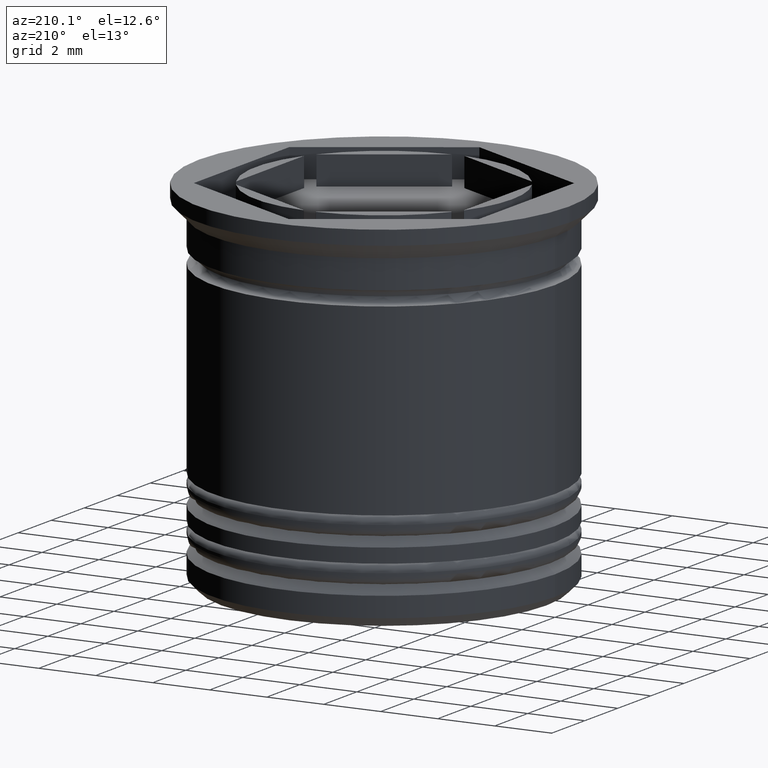
[diagram: clean part render]
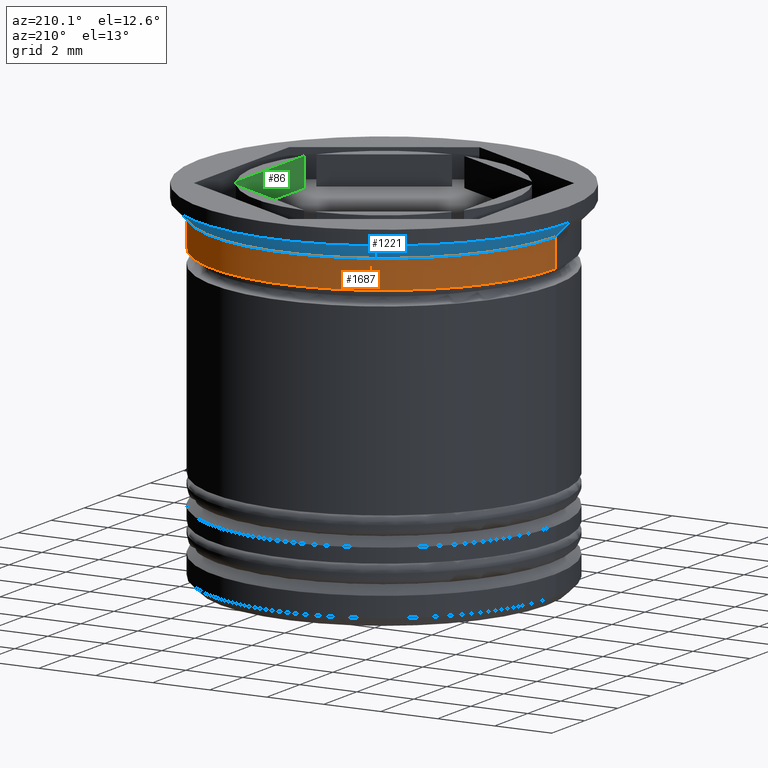
[diagram: same view with three faces highlighted in distinct colors, each labeled with its STEP entity id]
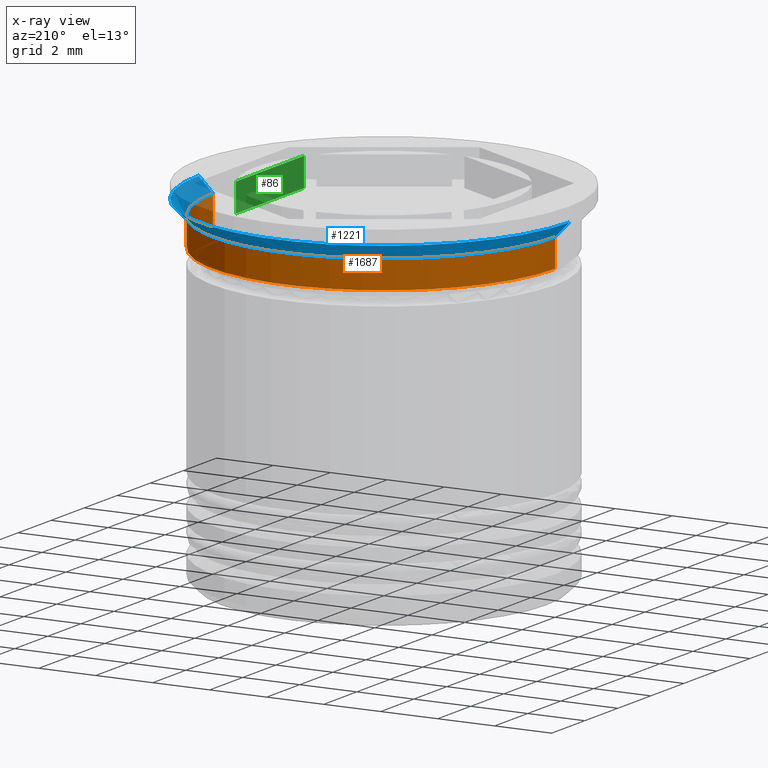
[diagram: x-ray of the same camera — body ghosted, the three highlighted faces saturated]
A machine part, auxiliary view with three faces highlighted in distinct colors.
The next image is the same camera in x-ray (body ghosted, the three faces saturated) — at least one of them is partly hidden behind the body in this view.
Their STEP definitions:

[orange] entity #1687 — the highlighted cylindrical surface (partial cylindrical patch) has radius 6 mm, axis along (-0, -0, 1).
#7 = DIRECTION ( 'NONE',  ( -0.000000000000000000, -0.000000000000000000, 1.000000000000000000 ) ) ;
#41 = CARTESIAN_POINT ( 'NONE',  ( 5.999999999999998224, 0.000000000000000000, 0.000000000000000000 ) ) ;
#67 = DIRECTION ( 'NONE',  ( -0.000000000000000000, -0.000000000000000000, 1.000000000000000000 ) ) ;
#75 = EDGE_CURVE ( 'NONE', #591, #1093, #286, .T. ) ;
#135 = DIRECTION ( 'NONE',  ( -0.000000000000000000, -0.000000000000000000, 1.000000000000000000 ) ) ;
#247 = DIRECTION ( 'NONE',  ( 1.000000000000000000, 0.000000000000000000, 0.000000000000000000 ) ) ;
#250 = DIRECTION ( 'NONE',  ( 1.000000000000000000, 0.000000000000000000, 0.000000000000000000 ) ) ;
#286 = CIRCLE ( 'NONE', #797, 5.999999999999998224 ) ;
#330 = CARTESIAN_POINT ( 'NONE',  ( 5.999999999999998224, 0.000000000000000000, -0.9999999999999995559 ) ) ;
#373 = DIRECTION ( 'NONE',  ( -0.000000000000000000, -0.000000000000000000, 1.000000000000000000 ) ) ;
#382 = FACE_OUTER_BOUND ( 'NONE', #1477, .T. ) ;
#519 = VECTOR ( 'NONE', #373, 1000.000000000000000 ) ;
#591 = VERTEX_POINT ( 'NONE', #330 ) ;
#623 = AXIS2_PLACEMENT_3D ( 'NONE', #1400, #7, #1260 ) ;
#656 = LINE ( 'NONE', #695, #1581 ) ;
#676 = VERTEX_POINT ( 'NONE', #1606 ) ;
#695 = CARTESIAN_POINT ( 'NONE',  ( -5.999999999999998224, 7.347880794884117764E-16, 0.000000000000000000 ) ) ;
#723 = EDGE_CURVE ( 'NONE', #1521, #1093, #656, .T. ) ;
#797 = AXIS2_PLACEMENT_3D ( 'NONE', #1952, #67, #250 ) ;
#860 = CARTESIAN_POINT ( 'NONE',  ( -6.000000000000000000, 7.347880794884119736E-16, -2.000000000000000444 ) ) ;
#931 = AXIS2_PLACEMENT_3D ( 'NONE', #1059, #135, #247 ) ;
#997 = CYLINDRICAL_SURFACE ( 'NONE', #931, 5.999999999999998224 ) ;
#1046 = ORIENTED_EDGE ( 'NONE', *, *, #75, .F. ) ;
#1059 = CARTESIAN_POINT ( 'NONE',  ( 0.000000000000000000, 0.000000000000000000, 0.000000000000000000 ) ) ;
#1068 = CIRCLE ( 'NONE', #623, 5.999999999999999112 ) ;
#1082 = ORIENTED_EDGE ( 'NONE', *, *, #1402, .F. ) ;
#1093 = VERTEX_POINT ( 'NONE', #1115 ) ;
#1115 = CARTESIAN_POINT ( 'NONE',  ( -5.999999999999998224, 7.347880794884117764E-16, -0.9999999999999995559 ) ) ;
#1136 = ORIENTED_EDGE ( 'NONE', *, *, #723, .T. ) ;
#1260 = DIRECTION ( 'NONE',  ( 1.000000000000000000, 0.000000000000000000, 0.000000000000000000 ) ) ;
#1265 = LINE ( 'NONE', #41, #519 ) ;
#1270 = ORIENTED_EDGE ( 'NONE', *, *, #1864, .T. ) ;
#1400 = CARTESIAN_POINT ( 'NONE',  ( 0.000000000000000000, 0.000000000000000000, -2.000000000000000444 ) ) ;
#1402 = EDGE_CURVE ( 'NONE', #676, #591, #1265, .T. ) ;
#1477 = EDGE_LOOP ( 'NONE', ( #1270, #1136, #1046, #1082 ) ) ;
#1521 = VERTEX_POINT ( 'NONE', #860 ) ;
#1581 = VECTOR ( 'NONE', #1772, 1000.000000000000000 ) ;
#1606 = CARTESIAN_POINT ( 'NONE',  ( 5.999999999999999112, 0.000000000000000000, -2.000000000000000444 ) ) ;
#1687 = ADVANCED_FACE ( 'NONE', ( #382 ), #997, .T. ) ;
#1772 = DIRECTION ( 'NONE',  ( -0.000000000000000000, -0.000000000000000000, 1.000000000000000000 ) ) ;
#1864 = EDGE_CURVE ( 'NONE', #676, #1521, #1068, .T. ) ;
#1952 = CARTESIAN_POINT ( 'NONE',  ( 0.000000000000000000, 0.000000000000000000, -0.9999999999999995559 ) ) ;

[blue] entity #1221 — the highlighted conical surface has half-angle 45 deg.
#35 = DIRECTION ( 'NONE',  ( -0.7071067811865493491, 8.659560562354955045E-17, 0.7071067811865456854 ) ) ;
#67 = DIRECTION ( 'NONE',  ( -0.000000000000000000, -0.000000000000000000, 1.000000000000000000 ) ) ;
#75 = EDGE_CURVE ( 'NONE', #591, #1093, #286, .T. ) ;
#92 = DIRECTION ( 'NONE',  ( 1.000000000000000000, 0.000000000000000000, 0.000000000000000000 ) ) ;
#117 = CARTESIAN_POINT ( 'NONE',  ( 6.500000000000000000, 0.000000000000000000, -0.4999999999999956701 ) ) ;
#228 = LINE ( 'NONE', #673, #1883 ) ;
#250 = DIRECTION ( 'NONE',  ( 1.000000000000000000, 0.000000000000000000, 0.000000000000000000 ) ) ;
#286 = CIRCLE ( 'NONE', #797, 5.999999999999998224 ) ;
#293 = CONICAL_SURFACE ( 'NONE', #1800, 6.500000000000000000, 0.7853981633974509435 ) ;
#320 = AXIS2_PLACEMENT_3D ( 'NONE', #1867, #1452, #1726 ) ;
#330 = CARTESIAN_POINT ( 'NONE',  ( 5.999999999999998224, 0.000000000000000000, -0.9999999999999995559 ) ) ;
#367 = DIRECTION ( 'NONE',  ( -0.000000000000000000, -0.000000000000000000, 1.000000000000000000 ) ) ;
#494 = VERTEX_POINT ( 'NONE', #117 ) ;
#591 = VERTEX_POINT ( 'NONE', #330 ) ;
#641 = CARTESIAN_POINT ( 'NONE',  ( 6.500000000000000000, 0.000000000000000000, -0.4999999999999956701 ) ) ;
#673 = CARTESIAN_POINT ( 'NONE',  ( -6.500000000000000000, 7.960204194457795477E-16, -0.4999999999999956701 ) ) ;
#683 = ORIENTED_EDGE ( 'NONE', *, *, #1141, .T. ) ;
#712 = ORIENTED_EDGE ( 'NONE', *, *, #1863, .F. ) ;
#785 = DIRECTION ( 'NONE',  ( 0.7071067811865493491, 0.000000000000000000, 0.7071067811865456854 ) ) ;
#797 = AXIS2_PLACEMENT_3D ( 'NONE', #1952, #67, #250 ) ;
#1093 = VERTEX_POINT ( 'NONE', #1115 ) ;
#1115 = CARTESIAN_POINT ( 'NONE',  ( -5.999999999999998224, 7.347880794884117764E-16, -0.9999999999999995559 ) ) ;
#1130 = EDGE_CURVE ( 'NONE', #494, #1855, #1360, .T. ) ;
#1137 = FACE_OUTER_BOUND ( 'NONE', #1238, .T. ) ;
#1141 = EDGE_CURVE ( 'NONE', #1093, #1855, #228, .T. ) ;
#1221 = ADVANCED_FACE ( 'NONE', ( #1137 ), #293, .T. ) ;
#1222 = ORIENTED_EDGE ( 'NONE', *, *, #1130, .F. ) ;
#1238 = EDGE_LOOP ( 'NONE', ( #1497, #683, #1222, #712 ) ) ;
#1360 = CIRCLE ( 'NONE', #320, 6.500000000000000000 ) ;
#1382 = CARTESIAN_POINT ( 'NONE',  ( -6.500000000000000000, 7.960204194457795477E-16, -0.4999999999999956701 ) ) ;
#1452 = DIRECTION ( 'NONE',  ( -0.000000000000000000, -0.000000000000000000, 1.000000000000000000 ) ) ;
#1495 = VECTOR ( 'NONE', #785, 1000.000000000000000 ) ;
#1497 = ORIENTED_EDGE ( 'NONE', *, *, #75, .T. ) ;
#1726 = DIRECTION ( 'NONE',  ( -1.000000000000000000, 0.000000000000000000, 0.000000000000000000 ) ) ;
#1750 = CARTESIAN_POINT ( 'NONE',  ( 0.000000000000000000, 0.000000000000000000, -0.4999999999999956701 ) ) ;
#1800 = AXIS2_PLACEMENT_3D ( 'NONE', #1750, #367, #92 ) ;
#1848 = LINE ( 'NONE', #641, #1495 ) ;
#1855 = VERTEX_POINT ( 'NONE', #1382 ) ;
#1863 = EDGE_CURVE ( 'NONE', #591, #494, #1848, .T. ) ;
#1867 = CARTESIAN_POINT ( 'NONE',  ( 0.000000000000000000, 0.000000000000000000, -0.4999999999999956701 ) ) ;
#1883 = VECTOR ( 'NONE', #35, 1000.000000000000000 ) ;
#1952 = CARTESIAN_POINT ( 'NONE',  ( 0.000000000000000000, 0.000000000000000000, -0.9999999999999995559 ) ) ;

[green] entity #86 — the highlighted planar face has unit normal (1, -0, 0).
#78 = DIRECTION ( 'NONE',  ( 1.877893248421448296E-16, 1.000000000000000000, 0.000000000000000000 ) ) ;
#86 = ADVANCED_FACE ( 'NONE', ( #542 ), #1159, .F. ) ;
#104 = LINE ( 'NONE', #111, #1095 ) ;
#111 = CARTESIAN_POINT ( 'NONE',  ( 4.000000000000000000, 2.061552812808830293, 12.72792206135785520 ) ) ;
#139 = EDGE_CURVE ( 'NONE', #1795, #1707, #496, .T. ) ;
#164 = CARTESIAN_POINT ( 'NONE',  ( 4.000000000000000000, -2.061552812808832069, 12.72792206135785520 ) ) ;
#238 = DIRECTION ( 'NONE',  ( 1.000000000000000000, -1.877893248421448296E-16, 0.000000000000000000 ) ) ;
#264 = VECTOR ( 'NONE', #851, 1000.000000000000000 ) ;
#337 = CARTESIAN_POINT ( 'NONE',  ( 3.999999999999999112, -2.309401076758504257, -1.000000000000000888 ) ) ;
#496 = LINE ( 'NONE', #337, #1352 ) ;
#529 = CARTESIAN_POINT ( 'NONE',  ( 4.000000000000000000, -7.511572993685793184E-16, 0.000000000000000000 ) ) ;
#542 = FACE_OUTER_BOUND ( 'NONE', #1593, .T. ) ;
#666 = VERTEX_POINT ( 'NONE', #1851 ) ;
#703 = ORIENTED_EDGE ( 'NONE', *, *, #1073, .F. ) ;
#765 = LINE ( 'NONE', #164, #1492 ) ;
#777 = DIRECTION ( 'NONE',  ( -0.000000000000000000, -0.000000000000000000, -1.000000000000000000 ) ) ;
#851 = DIRECTION ( 'NONE',  ( 1.877893248421448296E-16, 1.000000000000000000, 0.000000000000000000 ) ) ;
#852 = ORIENTED_EDGE ( 'NONE', *, *, #139, .T. ) ;
#1024 = DIRECTION ( 'NONE',  ( 0.000000000000000000, 0.000000000000000000, 1.000000000000000000 ) ) ;
#1028 = ORIENTED_EDGE ( 'NONE', *, *, #1308, .F. ) ;
#1073 = EDGE_CURVE ( 'NONE', #666, #1707, #765, .T. ) ;
#1095 = VECTOR ( 'NONE', #1024, 1000.000000000000000 ) ;
#1159 = PLANE ( 'NONE',  #1284 ) ;
#1161 = CARTESIAN_POINT ( 'NONE',  ( 4.000000000000000000, 2.061552812808831181, 0.000000000000000000 ) ) ;
#1284 = AXIS2_PLACEMENT_3D ( 'NONE', #1485, #238, #78 ) ;
#1301 = VERTEX_POINT ( 'NONE', #1161 ) ;
#1308 = EDGE_CURVE ( 'NONE', #1795, #1301, #104, .T. ) ;
#1352 = VECTOR ( 'NONE', #1661, 1000.000000000000000 ) ;
#1376 = LINE ( 'NONE', #529, #264 ) ;
#1415 = ORIENTED_EDGE ( 'NONE', *, *, #1670, .T. ) ;
#1485 = CARTESIAN_POINT ( 'NONE',  ( 3.999999999999999112, -2.309401076758504257, -13.22020185321557584 ) ) ;
#1492 = VECTOR ( 'NONE', #777, 1000.000000000000000 ) ;
#1551 = CARTESIAN_POINT ( 'NONE',  ( 4.000000000000000000, 2.061552812808830737, -1.000000000000000888 ) ) ;
#1593 = EDGE_LOOP ( 'NONE', ( #1415, #1028, #852, #703 ) ) ;
#1661 = DIRECTION ( 'NONE',  ( -1.877893248421448296E-16, -1.000000000000000000, 0.000000000000000000 ) ) ;
#1670 = EDGE_CURVE ( 'NONE', #666, #1301, #1376, .T. ) ;
#1707 = VERTEX_POINT ( 'NONE', #1819 ) ;
#1795 = VERTEX_POINT ( 'NONE', #1551 ) ;
#1819 = CARTESIAN_POINT ( 'NONE',  ( 4.000000000000000000, -2.061552812808832513, -1.000000000000000888 ) ) ;
#1851 = CARTESIAN_POINT ( 'NONE',  ( 3.999999999999999112, -2.061552812808832513, 0.000000000000000000 ) ) ;